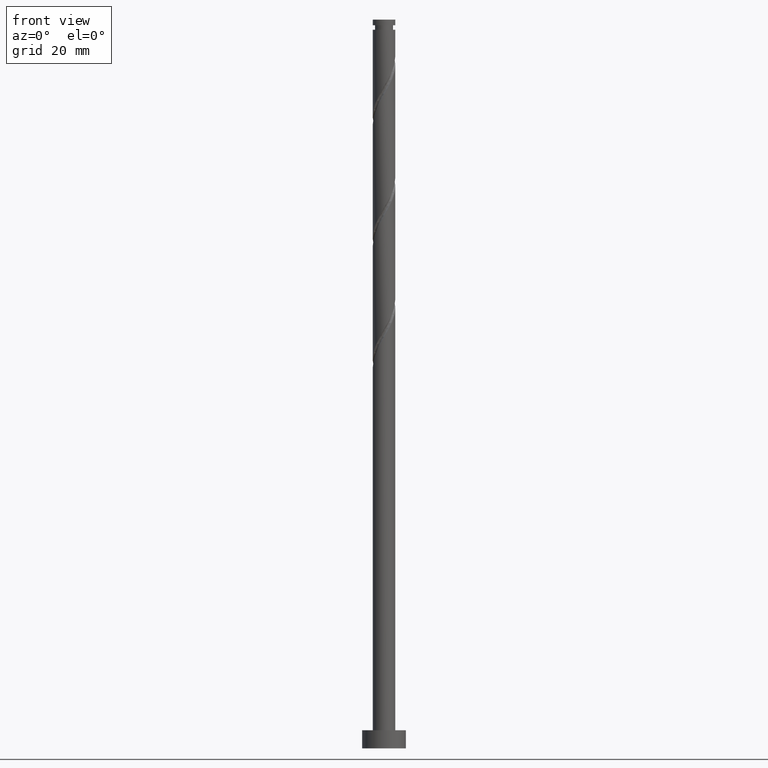
[diagram: clean part render]
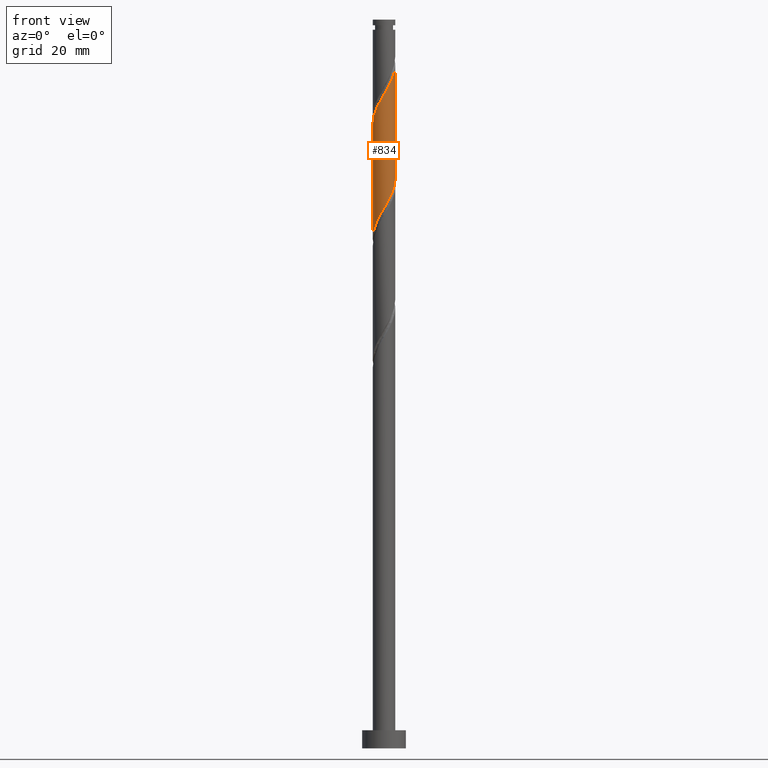
[diagram: same view with one face highlighted and labeled with its STEP entity id]
A machine part, front view. The second image highlights one B-rep face of the part: STEP entity #834.
In plain terms, the highlighted cylindrical surface (edge-blend (fillet) strip) has radius 3.1 mm, axis along (-0, -0, -1).
Its self-contained STEP definition (entity closure, byte-faithful):
#45 = CARTESIAN_POINT ( 'NONE',  ( 0.9847556738719618341, -2.939431282200177353, 149.9767282872808210 ) ) ;
#54 = CARTESIAN_POINT ( 'NONE',  ( -2.584399066908310783, -1.711981735581151520, 143.0322838428363355 ) ) ;
#100 = CARTESIAN_POINT ( 'NONE',  ( 2.584399066908312115, -1.711981735581156183, 184.6989505095029358 ) ) ;
#102 = CYLINDRICAL_SURFACE ( 'NONE', #611, 3.100000000000000089 ) ;
#132 = CARTESIAN_POINT ( 'NONE',  ( 2.939431282200180462, -0.9847556738719657199, 186.0878393983919352 ) ) ;
#140 = CARTESIAN_POINT ( 'NONE',  ( -3.100000000000004974, -0.3115617227303476011, 171.6688102234821827 ) ) ;
#141 = ORIENTED_EDGE ( 'NONE', *, *, #426, .T. ) ;
#186 = CARTESIAN_POINT ( 'NONE',  ( -1.747476256661028238, -2.592853814885977215, 145.1156171761697067 ) ) ;
#193 = CARTESIAN_POINT ( 'NONE',  ( 2.322539071194071436, -2.053244326128037756, 152.7545060650586208 ) ) ;
#199 = CARTESIAN_POINT ( 'NONE',  ( 2.052224327502166101, -2.359012395595048606, 152.0600616206141353 ) ) ;
#237 = DIRECTION ( 'NONE',  ( -0.000000000000000000, -0.000000000000000000, -1.000000000000000000 ) ) ;
#242 = CARTESIAN_POINT ( 'NONE',  ( -3.100000000000000977, -5.174009417492547968E-15, 139.9291838313797882 ) ) ;
#263 = CARTESIAN_POINT ( 'NONE',  ( 0.6168922110061049180, -3.038000000000003364, 180.5322838428363355 ) ) ;
#312 = CARTESIAN_POINT ( 'NONE',  ( 1.371739143660136495, -2.809785738221574292, 150.6711727317251643 ) ) ;
#333 = CARTESIAN_POINT ( 'NONE',  ( -3.094146113249972352, -0.1904201403740952703, 140.2545060650585356 ) ) ;
#342 = CARTESIAN_POINT ( 'NONE',  ( -0.6168922110061054731, -3.037999999999999812, 147.1989505095030211 ) ) ;
#367 = VERTEX_POINT ( 'NONE', #794 ) ;
#369 = CARTESIAN_POINT ( 'NONE',  ( -0.1904201403740973519, -3.094146113249975460, 179.1433949539474497 ) ) ;
#389 = CARTESIAN_POINT ( 'NONE',  ( -2.956784599678840220, -1.016852498676614092, 172.8933949539474213 ) ) ;
#399 = CARTESIAN_POINT ( 'NONE',  ( 2.809785738221576512, -1.371739143660140492, 185.3933949539474781 ) ) ;
#418 = CARTESIAN_POINT ( 'NONE',  ( -3.100000000000000089, 0.000000000000000000, 200.0000000000000000 ) ) ;
#426 = EDGE_CURVE ( 'NONE', #1347, #1731, #1738, .T. ) ;
#452 =( BOUNDED_CURVE ( )  B_SPLINE_CURVE ( 2, ( #999, #1399, #1681, #1647, #589, #857, #193, #199, #1246, #312, #45, #1266, #735, #742, #342, #1538, #1381, #186, #885, #464, #54, #1546, #729, #1146, #333, #1524, #597 ),
 .UNSPECIFIED., .F., .T. ) 
 B_SPLINE_CURVE_WITH_KNOTS ( ( 3, 2, 2, 2, 2, 2, 2, 2, 2, 2, 2, 2, 2, 3 ),
 ( 0.5545317669814463502, 0.5625000000000000000, 0.5729166666666666297, 0.5833333333333333703, 0.5937500000000000000, 0.6041666666666666297, 0.6145833333333333703, 0.6250000000000000000, 0.6354166666666666297, 0.6458333333333333703, 0.6562500000000000000, 0.6666666666666666297, 0.6770833333333333703, 0.6795317669814460171 ),
 .UNSPECIFIED. ) 
 CURVE ( )  GEOMETRIC_REPRESENTATION_ITEM ( )  RATIONAL_B_SPLINE_CURVE ( ( 0.9062941362546446111, 0.9031415850403490264, 0.9090909090909243817, 0.9013135103398428605, 0.9090909090909243817, 0.9013135103398428605, 0.9090909090909243817, 0.9013135103398428605, 0.9090909090909243817, 0.9013135103398428605, 0.9090909090909243817, 0.9013135103398428605, 0.9090909090909243817, 0.9013135103398428605, 0.9090909090909243817, 0.9013135103398428605, 0.9090909090909243817, 0.9013135103398428605, 0.9090909090909243817, 0.9013135103398428605, 0.9090909090909243817, 0.9013135103398428605, 0.9090909090909243817, 0.9013135103398428605, 0.9090909090909243817, 0.9072628343904183268, 0.9062941362546449442 ) ) 
 REPRESENTATION_ITEM ( '' )  );
#464 = CARTESIAN_POINT ( 'NONE',  ( -2.359012395595048606, -2.052224327502166101, 143.7267282872807925 ) ) ;
#500 = DIRECTION ( 'NONE',  ( -0.000000000000000000, -0.000000000000000000, -1.000000000000000000 ) ) ;
#531 = CARTESIAN_POINT ( 'NONE',  ( -2.052224327502170542, -2.359012395595049938, 175.6711727317252212 ) ) ;
#540 = CARTESIAN_POINT ( 'NONE',  ( 1.016852498676613870, -2.956784599678840220, 181.2267282872808210 ) ) ;
#568 = CARTESIAN_POINT ( 'NONE',  ( -3.100000000000003197, -9.570422043916794427E-16, 171.1353838542929111 ) ) ;
#589 = CARTESIAN_POINT ( 'NONE',  ( 2.774819207282405387, -1.382164377668822164, 154.1433949539474781 ) ) ;
#597 = CARTESIAN_POINT ( 'NONE',  ( -3.100000000000000977, -5.174009417492547968E-15, 139.9291838313797882 ) ) ;
#611 = AXIS2_PLACEMENT_3D ( 'NONE', #648, #237, #1172 ) ;
#648 = CARTESIAN_POINT ( 'NONE',  ( 0.000000000000000000, 0.000000000000000000, 200.0000000000000000 ) ) ;
#665 = CARTESIAN_POINT ( 'NONE',  ( -0.9847556738719654978, -2.939431282200180462, 177.7545060650584787 ) ) ;
#713 = ORIENTED_EDGE ( 'NONE', *, *, #798, .F. ) ;
#729 = CARTESIAN_POINT ( 'NONE',  ( -2.939431282200177353, -0.9847556738719620562, 141.6433949539474497 ) ) ;
#735 = CARTESIAN_POINT ( 'NONE',  ( 0.1904201403740945764, -3.094146113249972796, 148.5878393983918500 ) ) ;
#742 = CARTESIAN_POINT ( 'NONE',  ( -0.2169319233355973542, -3.119215400321165621, 147.8933949539473929 ) ) ;
#744 = VERTEX_POINT ( 'NONE', #1703 ) ;
#775 = CARTESIAN_POINT ( 'NONE',  ( -2.774819207282409383, -1.382164377668821054, 173.5878393983918784 ) ) ;
#794 = CARTESIAN_POINT ( 'NONE',  ( 3.100000000000000533, 4.501089117529644308E-15, 156.5958504980464454 ) ) ;
#795 = CARTESIAN_POINT ( 'NONE',  ( -2.592853814885981656, -1.747476256661028016, 174.2822838428363923 ) ) ;
#798 = EDGE_CURVE ( 'NONE', #744, #367, #1052, .T. ) ;
#808 = ORIENTED_EDGE ( 'NONE', *, *, #1069, .F. ) ;
#816 = CARTESIAN_POINT ( 'NONE',  ( 3.094146113249975460, -0.1904201403740988507, 187.4767282872807925 ) ) ;
#823 = EDGE_LOOP ( 'NONE', ( #713, #1737, #141, #808 ) ) ;
#834 = ADVANCED_FACE ( 'NONE', ( #1300 ), #102, .T. ) ;
#857 = CARTESIAN_POINT ( 'NONE',  ( 2.592853814885977215, -1.747476256661028460, 153.4489505095030779 ) ) ;
#885 = CARTESIAN_POINT ( 'NONE',  ( -2.053244326128037756, -2.322539071194071436, 144.4211727317252212 ) ) ;
#900 = VECTOR ( 'NONE', #1065, 1000.000000000000000 ) ;
#901 = CARTESIAN_POINT ( 'NONE',  ( 0.2169319233355950505, -3.119215400321167841, 179.8378393983919068 ) ) ;
#910 = CARTESIAN_POINT ( 'NONE',  ( 2.053244326128038200, -2.322539071194075877, 183.3100616206140785 ) ) ;
#932 = CARTESIAN_POINT ( 'NONE',  ( 1.747476256661027350, -2.592853814885982100, 182.6156171761696783 ) ) ;
#939 = CARTESIAN_POINT ( 'NONE',  ( 2.359012395595049938, -2.052224327502170542, 184.0045060650585071 ) ) ;
#999 = CARTESIAN_POINT ( 'NONE',  ( 3.100000000000000533, 4.501089117529644308E-15, 156.5958504980464738 ) ) ;
#1032 = CARTESIAN_POINT ( 'NONE',  ( 1.382164377668820388, -2.774819207282409383, 181.9211727317252212 ) ) ;
#1052 = LINE ( 'NONE', #1446, #1247 ) ;
#1065 = DIRECTION ( 'NONE',  ( -0.000000000000000000, -0.000000000000000000, -1.000000000000000000 ) ) ;
#1069 = EDGE_CURVE ( 'NONE', #367, #1731, #452, .T. ) ;
#1146 = CARTESIAN_POINT ( 'NONE',  ( -3.069076826178780415, -0.5977722040837869510, 140.9489505095030211 ) ) ;
#1172 = DIRECTION ( 'NONE',  ( -1.000000000000000000, 0.000000000000000000, 0.000000000000000000 ) ) ;
#1183 = CARTESIAN_POINT ( 'NONE',  ( 3.100000000000000533, -0.09530005013882017484, 187.6388868329313766 ) ) ;
#1213 = CARTESIAN_POINT ( 'NONE',  ( -1.711981735581154407, -2.584399066908313003, 176.3656171761696783 ) ) ;
#1246 = CARTESIAN_POINT ( 'NONE',  ( 1.711981735581150632, -2.584399066908311671, 151.3656171761696783 ) ) ;
#1247 = VECTOR ( 'NONE', #500, 1000.000000000000000 ) ;
#1266 = CARTESIAN_POINT ( 'NONE',  ( 0.5977722040837861739, -3.069076826178781303, 149.2822838428363639 ) ) ;
#1300 = FACE_OUTER_BOUND ( 'NONE', #823, .T. ) ;
#1316 = CARTESIAN_POINT ( 'NONE',  ( -3.038000000000003364, -0.6168922110061052511, 172.1989505095029926 ) ) ;
#1325 = CARTESIAN_POINT ( 'NONE',  ( -3.100000000000003197, -9.570422043916794427E-16, 171.1353838542928827 ) ) ;
#1336 = CARTESIAN_POINT ( 'NONE',  ( 3.100000000000003197, -1.031811126609779433E-15, 187.8020505209595683 ) ) ;
#1347 = VERTEX_POINT ( 'NONE', #568 ) ;
#1381 = CARTESIAN_POINT ( 'NONE',  ( -1.382164377668821054, -2.774819207282405831, 145.8100616206141069 ) ) ;
#1399 = CARTESIAN_POINT ( 'NONE',  ( 3.100000000000000533, -0.3115617227303584258, 156.0624241288571454 ) ) ;
#1411 =( BOUNDED_CURVE ( )  B_SPLINE_CURVE ( 2, ( #1325, #140, #1316, #389, #775, #795, #1708, #531, #1213, #1729, #665, #1588, #369, #901, #263, #540, #1032, #932, #910, #939, #100, #399, #132, #1445, #816, #1183, #1336 ),
 .UNSPECIFIED., .F., .T. ) 
 B_SPLINE_CURVE_WITH_KNOTS ( ( 3, 2, 2, 2, 2, 2, 2, 2, 2, 2, 2, 2, 2, 3 ),
 ( 0.5545317669814460171, 0.5625000000000000000, 0.5729166666666667407, 0.5833333333333332593, 0.5937500000000000000, 0.6041666666666667407, 0.6145833333333332593, 0.6250000000000000000, 0.6354166666666667407, 0.6458333333333332593, 0.6562500000000000000, 0.6666666666666667407, 0.6770833333333332593, 0.6795317669814454620 ),
 .UNSPECIFIED. ) 
 CURVE ( )  GEOMETRIC_REPRESENTATION_ITEM ( )  RATIONAL_B_SPLINE_CURVE ( ( 0.9062941362546501622, 0.9031415850403542445, 0.9090909090909298218, 0.9013135103398480785, 0.9090909090909298218, 0.9013135103398480785, 0.9090909090909298218, 0.9013135103398480785, 0.9090909090909298218, 0.9013135103398480785, 0.9090909090909298218, 0.9013135103398480785, 0.9090909090909298218, 0.9013135103398480785, 0.9090909090909298218, 0.9013135103398480785, 0.9090909090909298218, 0.9013135103398480785, 0.9090909090909298218, 0.9013135103398480785, 0.9090909090909298218, 0.9013135103398480785, 0.9090909090909298218, 0.9013135103398480785, 0.9090909090909298218, 0.9072628343904242110, 0.9062941362546508284 ) ) 
 REPRESENTATION_ITEM ( '' )  );
#1445 = CARTESIAN_POINT ( 'NONE',  ( 3.069076826178783524, -0.5977722040837909478, 186.7822838428363355 ) ) ;
#1446 = CARTESIAN_POINT ( 'NONE',  ( 3.100000000000000089, 3.796405077356794918E-16, 200.0000000000000000 ) ) ;
#1524 = CARTESIAN_POINT ( 'NONE',  ( -3.099999999999999201, -0.09530005013879826181, 140.0923475194079231 ) ) ;
#1538 = CARTESIAN_POINT ( 'NONE',  ( -1.016852498676614980, -2.956784599678835779, 146.5045060650585356 ) ) ;
#1546 = CARTESIAN_POINT ( 'NONE',  ( -2.809785738221574292, -1.371739143660136495, 142.3378393983919352 ) ) ;
#1588 = CARTESIAN_POINT ( 'NONE',  ( -0.5977722040837896156, -3.069076826178783968, 178.4489505095030211 ) ) ;
#1647 = CARTESIAN_POINT ( 'NONE',  ( 2.956784599678834002, -1.016852498676616312, 154.8378393983919068 ) ) ;
#1681 = CARTESIAN_POINT ( 'NONE',  ( 3.037999999999999812, -0.6168922110061054731, 155.5322838428363639 ) ) ;
#1703 = CARTESIAN_POINT ( 'NONE',  ( 3.100000000000003197, -1.031811126609779433E-15, 187.8020505209595967 ) ) ;
#1708 = CARTESIAN_POINT ( 'NONE',  ( -2.322539071194074545, -2.053244326128038200, 174.9767282872807641 ) ) ;
#1729 = CARTESIAN_POINT ( 'NONE',  ( -1.371739143660140492, -2.809785738221576512, 177.0600616206140501 ) ) ;
#1731 = VERTEX_POINT ( 'NONE', #242 ) ;
#1737 = ORIENTED_EDGE ( 'NONE', *, *, #1746, .F. ) ;
#1738 = LINE ( 'NONE', #418, #900 ) ;
#1746 = EDGE_CURVE ( 'NONE', #1347, #744, #1411, .T. ) ;